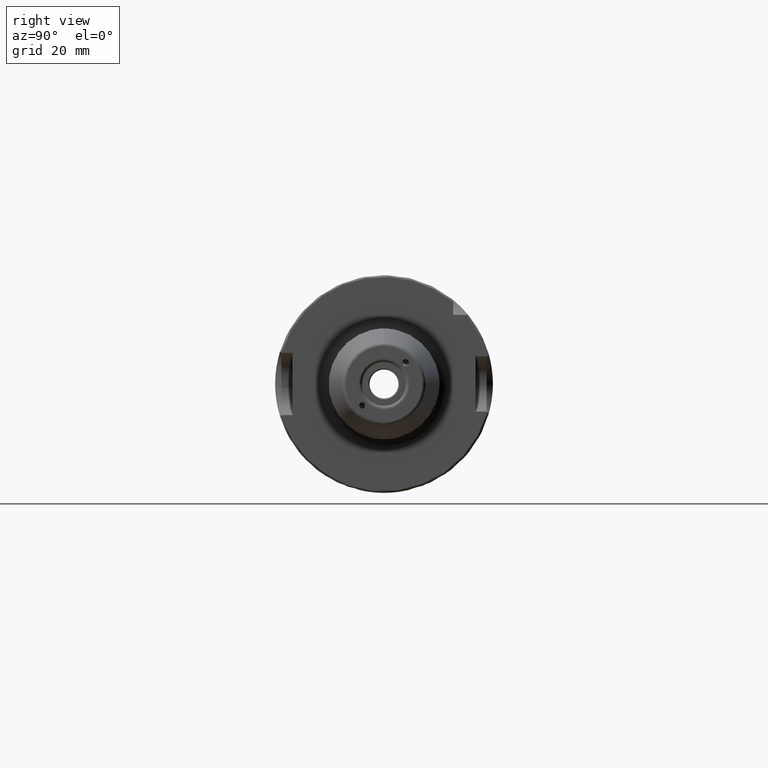
[diagram: clean part render]
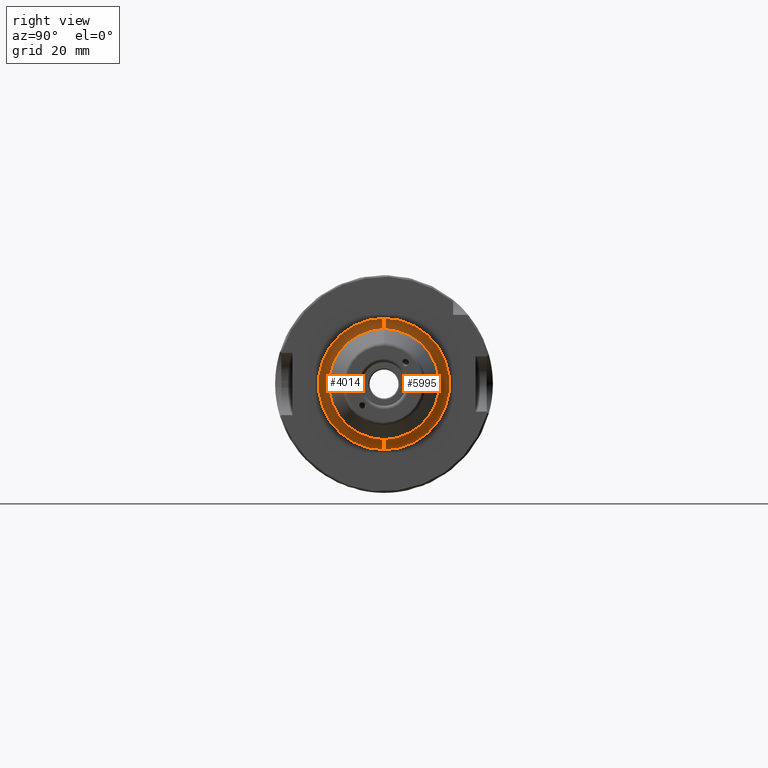
[diagram: same view with one multi-face feature highlighted, each face labeled with its STEP entity id]
A machine part, right view. The highlighted faces form ONE feature: a constant-radius fillet chain: 2 tangent blend faces with common blend radius 3 mm. The faces share edges in the B-rep.
Their STEP definitions:
[1] entity #5995 (Torus):
#648=CARTESIAN_POINT('',(2.9E1,0.E0,0.E0));
#649=DIRECTION('',(1.E0,0.E0,0.E0));
#650=DIRECTION('',(0.E0,0.E0,-1.E0));
#651=AXIS2_PLACEMENT_3D('',#648,#649,#650);
#829=CARTESIAN_POINT('',(2.9E1,1.715153574722E-10,1.9E1));
#830=DIRECTION('',(0.E0,-1.E0,9.027122799266E-12));
#831=DIRECTION('',(-1.E0,0.E0,-2.169405396065E-11));
#832=AXIS2_PLACEMENT_3D('',#829,#830,#831);
#879=CARTESIAN_POINT('',(2.6E1,0.E0,0.E0));
#880=DIRECTION('',(1.E0,0.E0,0.E0));
#881=DIRECTION('',(0.E0,0.E0,-1.E0));
#882=AXIS2_PLACEMENT_3D('',#879,#880,#881);
#2559=CARTESIAN_POINT('',(2.9E1,-1.715174113848E-10,-1.9E1));
#2560=DIRECTION('',(0.E0,1.E0,-9.027230352121E-12));
#2561=DIRECTION('',(-1.E0,0.E0,2.169405396065E-11));
#2562=AXIS2_PLACEMENT_3D('',#2559,#2560,#2561);
#3104=CARTESIAN_POINT('',(2.6E1,0.E0,1.9E1));
#3105=CARTESIAN_POINT('',(2.6E1,0.E0,-1.9E1));
#3106=VERTEX_POINT('',#3104);
#3107=VERTEX_POINT('',#3105);
#3108=CARTESIAN_POINT('',(2.9E1,0.E0,1.6E1));
#3109=CARTESIAN_POINT('',(2.9E1,0.E0,-1.6E1));
#3110=VERTEX_POINT('',#3108);
#3111=VERTEX_POINT('',#3109);
#5984=CARTESIAN_POINT('',(2.9E1,0.E0,0.E0));
#5985=DIRECTION('',(1.E0,0.E0,0.E0));
#5986=DIRECTION('',(0.E0,-2.047276665366E-2,-9.997904109490E-1));
#5987=AXIS2_PLACEMENT_3D('',#5984,#5985,#5986);
#5988=TOROIDAL_SURFACE('',#5987,1.9E1,3.E0);
#5989=ORIENTED_EDGE('',*,*,#4049,.F.);
#5990=ORIENTED_EDGE('',*,*,#4010,.T.);
#5991=ORIENTED_EDGE('',*,*,#3823,.T.);
#5992=ORIENTED_EDGE('',*,*,#4007,.F.);
#5993=EDGE_LOOP('',(#5989,#5990,#5991,#5992));
#5994=FACE_OUTER_BOUND('',#5993,.F.);
#5995=ADVANCED_FACE('',(#5994),#5988,.F.);
#652=CIRCLE('',#651,1.6E1);
#833=CIRCLE('',#832,3.E0);
#883=CIRCLE('',#882,1.9E1);
#2563=CIRCLE('',#2562,3.E0);
#3823=EDGE_CURVE('',#3111,#3110,#652,.T.);
#4007=EDGE_CURVE('',#3106,#3110,#833,.T.);
#4010=EDGE_CURVE('',#3107,#3111,#2563,.T.);
#4049=EDGE_CURVE('',#3107,#3106,#883,.T.);
[2] entity #4014 (Torus):
#764=CARTESIAN_POINT('',(2.9E1,0.E0,0.E0));
#765=DIRECTION('',(1.E0,0.E0,0.E0));
#766=DIRECTION('',(0.E0,0.E0,1.E0));
#767=AXIS2_PLACEMENT_3D('',#764,#765,#766);
#829=CARTESIAN_POINT('',(2.9E1,1.715153574722E-10,1.9E1));
#830=DIRECTION('',(0.E0,-1.E0,9.027122799266E-12));
#831=DIRECTION('',(-1.E0,0.E0,-2.169405396065E-11));
#832=AXIS2_PLACEMENT_3D('',#829,#830,#831);
#874=CARTESIAN_POINT('',(2.6E1,0.E0,0.E0));
#875=DIRECTION('',(1.E0,0.E0,0.E0));
#876=DIRECTION('',(0.E0,0.E0,1.E0));
#877=AXIS2_PLACEMENT_3D('',#874,#875,#876);
#2559=CARTESIAN_POINT('',(2.9E1,-1.715174113848E-10,-1.9E1));
#2560=DIRECTION('',(0.E0,1.E0,-9.027230352121E-12));
#2561=DIRECTION('',(-1.E0,0.E0,2.169405396065E-11));
#2562=AXIS2_PLACEMENT_3D('',#2559,#2560,#2561);
#3104=CARTESIAN_POINT('',(2.6E1,0.E0,1.9E1));
#3105=CARTESIAN_POINT('',(2.6E1,0.E0,-1.9E1));
#3106=VERTEX_POINT('',#3104);
#3107=VERTEX_POINT('',#3105);
#3108=CARTESIAN_POINT('',(2.9E1,0.E0,1.6E1));
#3109=CARTESIAN_POINT('',(2.9E1,0.E0,-1.6E1));
#3110=VERTEX_POINT('',#3108);
#3111=VERTEX_POINT('',#3109);
#4000=CARTESIAN_POINT('',(2.9E1,0.E0,0.E0));
#4001=DIRECTION('',(1.E0,0.E0,0.E0));
#4002=DIRECTION('',(0.E0,2.047276665366E-2,9.997904109490E-1));
#4003=AXIS2_PLACEMENT_3D('',#4000,#4001,#4002);
#4004=TOROIDAL_SURFACE('',#4003,1.9E1,3.E0);
#4006=ORIENTED_EDGE('',*,*,#4005,.F.);
#4008=ORIENTED_EDGE('',*,*,#4007,.T.);
#4009=ORIENTED_EDGE('',*,*,#3936,.T.);
#4011=ORIENTED_EDGE('',*,*,#4010,.F.);
#4012=EDGE_LOOP('',(#4006,#4008,#4009,#4011));
#4013=FACE_OUTER_BOUND('',#4012,.F.);
#4014=ADVANCED_FACE('',(#4013),#4004,.F.);
#768=CIRCLE('',#767,1.6E1);
#833=CIRCLE('',#832,3.E0);
#878=CIRCLE('',#877,1.9E1);
#2563=CIRCLE('',#2562,3.E0);
#3936=EDGE_CURVE('',#3110,#3111,#768,.T.);
#4005=EDGE_CURVE('',#3106,#3107,#878,.T.);
#4007=EDGE_CURVE('',#3106,#3110,#833,.T.);
#4010=EDGE_CURVE('',#3107,#3111,#2563,.T.);